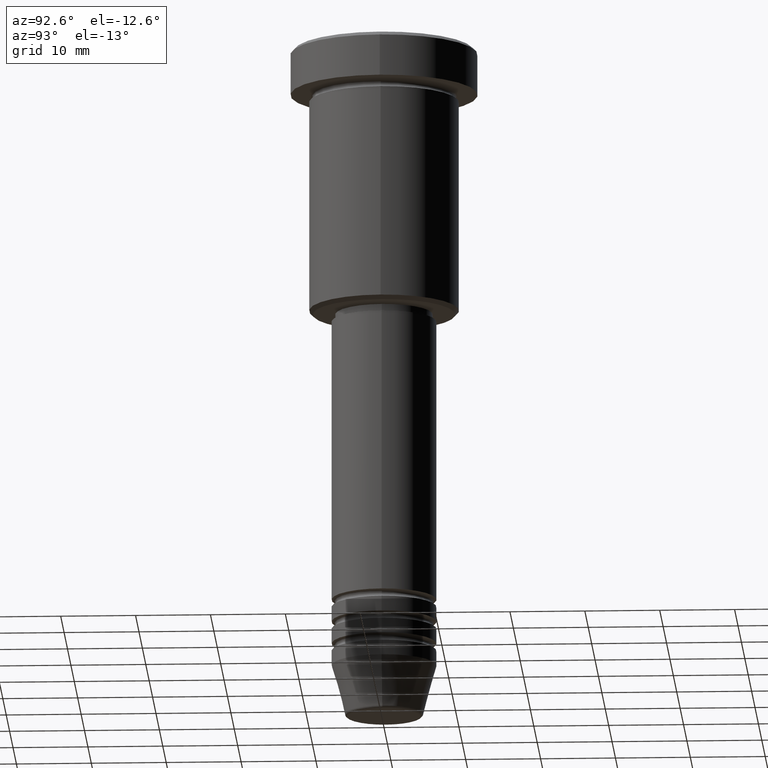
[diagram: clean part render]
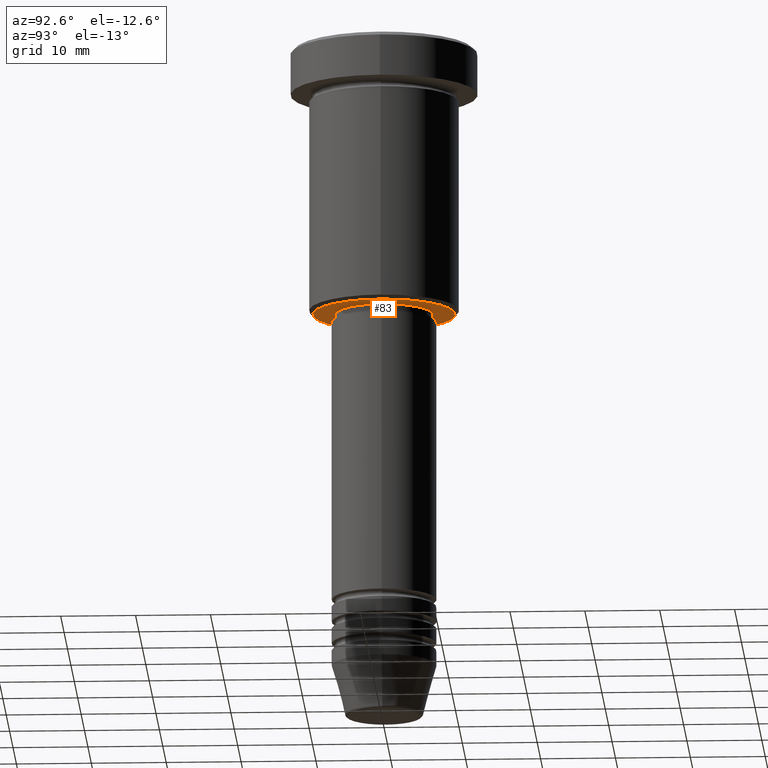
[diagram: same view with one face highlighted and labeled with its STEP entity id]
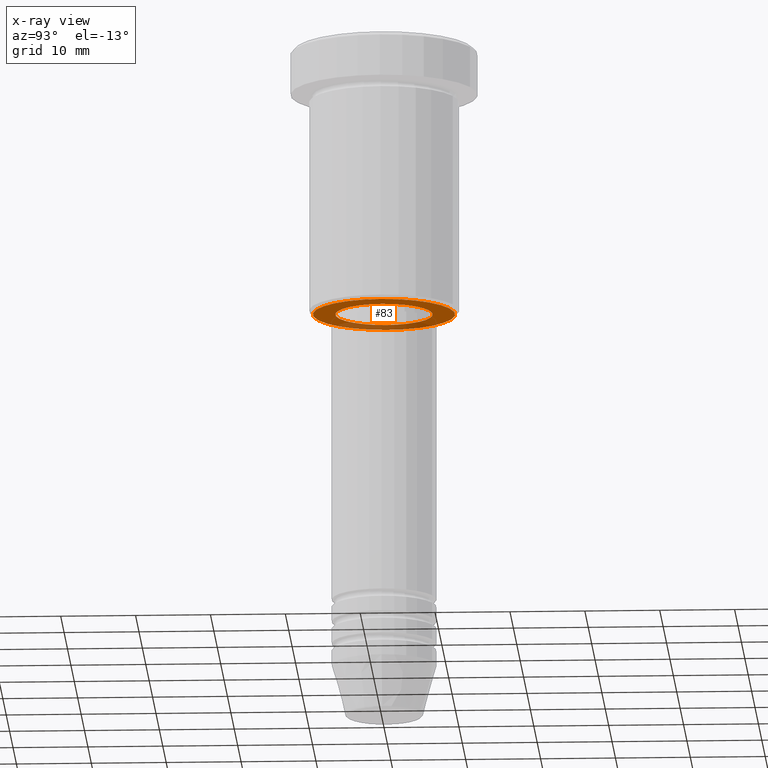
[diagram: x-ray of the same camera — body ghosted, the highlighted face saturated]
A machine part, auxiliary view. The second image highlights one B-rep face of the part: STEP entity #83.
The next image is the same camera in x-ray: the body ghosted, the highlighted face saturated — about 24% of this face is hidden behind the body in this view.
In plain terms, the highlighted planar face has unit normal (0, 0, -1).
Its self-contained STEP definition (entity closure, byte-faithful):
#20 = CIRCLE ( 'NONE', #425, 6.500000000000000000 ) ;
#25 = EDGE_CURVE ( 'NONE', #1122, #534, #302, .T. ) ;
#26 = ORIENTED_EDGE ( 'NONE', *, *, #539, .T. ) ;
#54 = CARTESIAN_POINT ( 'NONE',  ( 0.000000000000000000, 0.000000000000000000, -35.99999999999999289 ) ) ;
#83 = ADVANCED_FACE ( 'NONE', ( #621, #973 ), #967, .T. ) ;
#96 = EDGE_CURVE ( 'NONE', #210, #385, #1042, .T. ) ;
#159 = ORIENTED_EDGE ( 'NONE', *, *, #25, .T. ) ;
#161 = DIRECTION ( 'NONE',  ( 0.000000000000000000, 0.000000000000000000, -1.000000000000000000 ) ) ;
#164 = EDGE_CURVE ( 'NONE', #385, #210, #20, .T. ) ;
#176 = CARTESIAN_POINT ( 'NONE',  ( 0.000000000000000000, 0.000000000000000000, -35.99999999999999289 ) ) ;
#210 = VERTEX_POINT ( 'NONE', #990 ) ;
#228 = DIRECTION ( 'NONE',  ( 1.000000000000000000, 0.000000000000000000, 0.000000000000000000 ) ) ;
#250 = CARTESIAN_POINT ( 'NONE',  ( 9.500000000000008882, 0.000000000000000000, -35.99999999999999289 ) ) ;
#256 = DIRECTION ( 'NONE',  ( 1.000000000000000000, 0.000000000000000000, 0.000000000000000000 ) ) ;
#302 = CIRCLE ( 'NONE', #345, 9.500000000000008882 ) ;
#316 = DIRECTION ( 'NONE',  ( 0.000000000000000000, 0.000000000000000000, -1.000000000000000000 ) ) ;
#324 = EDGE_LOOP ( 'NONE', ( #26, #159 ) ) ;
#338 = CARTESIAN_POINT ( 'NONE',  ( 6.500000000000000000, 0.000000000000000000, -35.99999999999999289 ) ) ;
#345 = AXIS2_PLACEMENT_3D ( 'NONE', #54, #316, #878 ) ;
#385 = VERTEX_POINT ( 'NONE', #338 ) ;
#391 = EDGE_LOOP ( 'NONE', ( #435, #743 ) ) ;
#410 = CARTESIAN_POINT ( 'NONE',  ( 0.000000000000000000, 10.00000000000000000, -35.99999999999999289 ) ) ;
#415 = CARTESIAN_POINT ( 'NONE',  ( -9.500000000000008882, 1.194030629168669864E-15, -35.99999999999999289 ) ) ;
#425 = AXIS2_PLACEMENT_3D ( 'NONE', #1064, #726, #256 ) ;
#431 = DIRECTION ( 'NONE',  ( -1.000000000000000000, 0.000000000000000000, 0.000000000000000000 ) ) ;
#435 = ORIENTED_EDGE ( 'NONE', *, *, #164, .T. ) ;
#534 = VERTEX_POINT ( 'NONE', #250 ) ;
#539 = EDGE_CURVE ( 'NONE', #534, #1122, #866, .T. ) ;
#599 = DIRECTION ( 'NONE',  ( -0.000000000000000000, -0.000000000000000000, 1.000000000000000000 ) ) ;
#621 = FACE_OUTER_BOUND ( 'NONE', #324, .T. ) ;
#673 = AXIS2_PLACEMENT_3D ( 'NONE', #410, #161, #1054 ) ;
#726 = DIRECTION ( 'NONE',  ( -0.000000000000000000, -0.000000000000000000, 1.000000000000000000 ) ) ;
#743 = ORIENTED_EDGE ( 'NONE', *, *, #96, .T. ) ;
#751 = AXIS2_PLACEMENT_3D ( 'NONE', #176, #901, #431 ) ;
#866 = CIRCLE ( 'NONE', #751, 9.500000000000008882 ) ;
#878 = DIRECTION ( 'NONE',  ( -1.000000000000000000, 0.000000000000000000, 0.000000000000000000 ) ) ;
#901 = DIRECTION ( 'NONE',  ( 0.000000000000000000, 0.000000000000000000, -1.000000000000000000 ) ) ;
#967 = PLANE ( 'NONE',  #673 ) ;
#973 = FACE_BOUND ( 'NONE', #391, .T. ) ;
#990 = CARTESIAN_POINT ( 'NONE',  ( -6.500000000000000000, 7.960204194457795477E-16, -35.99999999999999289 ) ) ;
#1019 = AXIS2_PLACEMENT_3D ( 'NONE', #1132, #599, #228 ) ;
#1042 = CIRCLE ( 'NONE', #1019, 6.500000000000000000 ) ;
#1054 = DIRECTION ( 'NONE',  ( -1.000000000000000000, 0.000000000000000000, -0.000000000000000000 ) ) ;
#1064 = CARTESIAN_POINT ( 'NONE',  ( 0.000000000000000000, 0.000000000000000000, -35.99999999999999289 ) ) ;
#1122 = VERTEX_POINT ( 'NONE', #415 ) ;
#1132 = CARTESIAN_POINT ( 'NONE',  ( 0.000000000000000000, 0.000000000000000000, -35.99999999999999289 ) ) ;